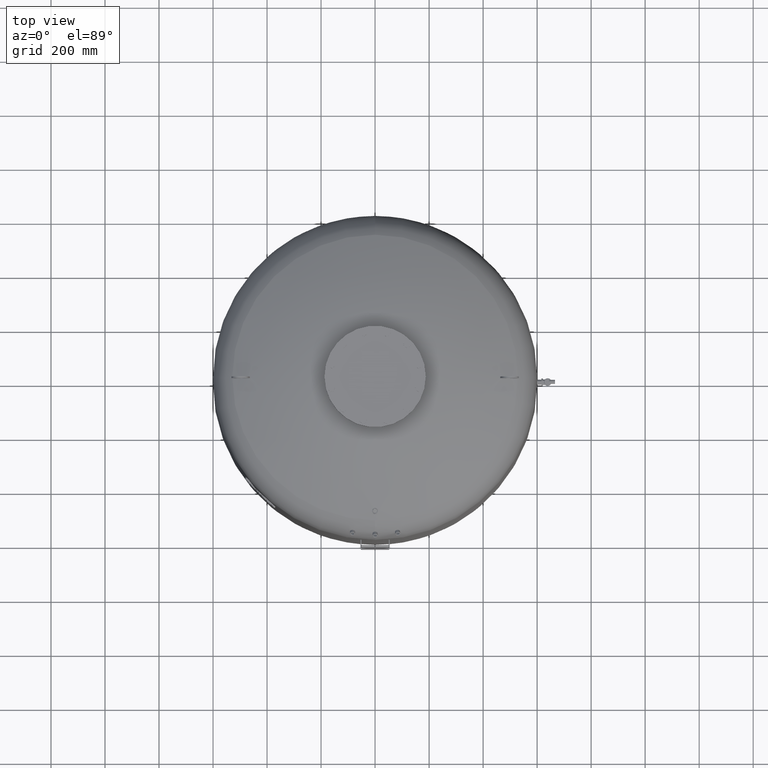
[diagram: clean part render]
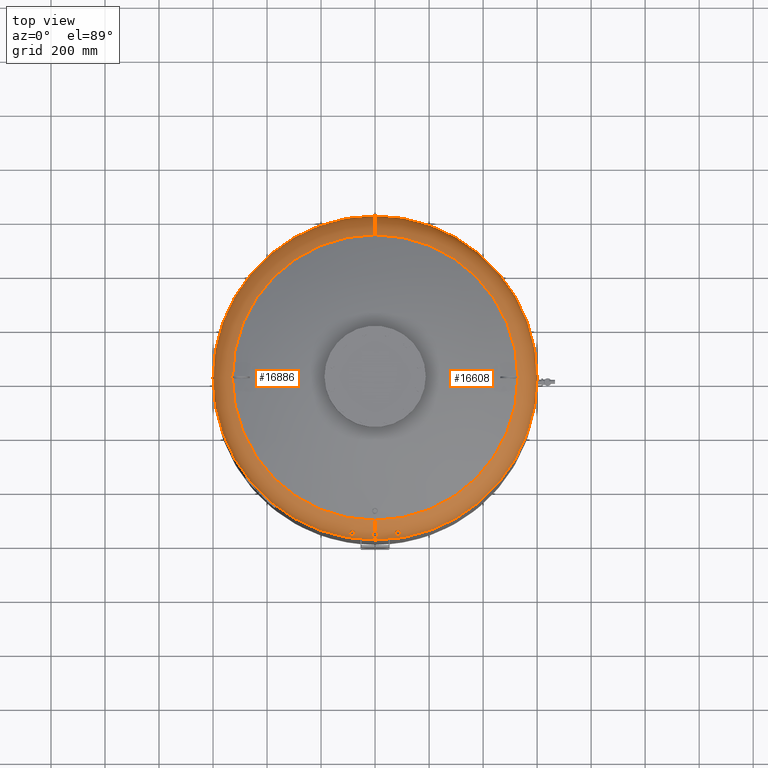
[diagram: same view with one multi-face feature highlighted, each face labeled with its STEP entity id]
A machine part, top view. The highlighted faces form ONE feature: a constant-radius fillet chain: 2 tangent blend faces with common blend radius 127 mm. The faces share edges in the B-rep.
Their STEP definitions:
[1] entity #16608 (Torus):
#15773=CARTESIAN_POINT('',(4.070251E-014,-581.392206755248030,1800.095004337934600));
#15774=VERTEX_POINT('',#15773);
#15790=CARTESIAN_POINT('',(-4.708126E-014,-570.568565249419520,1815.210520603582800));
#15791=VERTEX_POINT('',#15790);
#15970=CARTESIAN_POINT('',(80.223172074027133,-575.056327373477760,1801.335244714457500));
#15971=VERTEX_POINT('',#15970);
#15987=CARTESIAN_POINT('',(85.359990616421896,-564.012452827669340,1815.370250013727900));
#15988=VERTEX_POINT('',#15987);
#15995=CARTESIAN_POINT('',(82.009292261585088,-564.105222987667050,1815.846292839197300));
#15996=VERTEX_POINT('',#15995);
#15997=CARTESIAN_POINT('',(85.359990616421896,-564.012452827669340,1815.370250013727900));
#15998=CARTESIAN_POINT('',(84.920089566502156,-563.970924996638130,1815.498102364585700));
#15999=CARTESIAN_POINT('',(84.471191566060796,-563.951066197114070,1815.600862840021400));
#16000=CARTESIAN_POINT('',(83.351010887361198,-563.956621340505880,1815.790506757055900));
#16001=CARTESIAN_POINT('',(82.677718174702989,-564.007488409072720,1815.846948222621000));
#16002=CARTESIAN_POINT('',(82.009292261585088,-564.105222987667050,1815.846292839197300));
#16003=B_SPLINE_CURVE_WITH_KNOTS('',3,(#15997,#15998,#15999,#16000,#16001,#16002),.UNSPECIFIED.,.F.,.U.,(4,2,4),(55.013308857986530,56.395131241260138,58.421732116709315),.UNSPECIFIED.);
#16004=EDGE_CURVE('',#15988,#15996,#16003,.T.);
#16006=CARTESIAN_POINT('',(82.009292261585088,-564.105222987667050,1815.846292839197300));
#16007=CARTESIAN_POINT('',(80.800452631888035,-564.281974710599910,1815.845107586741100));
#16008=CARTESIAN_POINT('',(79.625994071250048,-564.609594186000210,1815.657432784025800));
#16009=CARTESIAN_POINT('',(77.477529422961481,-565.524878730347500,1814.925709264065700));
#16010=CARTESIAN_POINT('',(76.525491124374739,-566.104031617775150,1814.387647265080200));
#16011=CARTESIAN_POINT('',(75.042807573385517,-567.368487621646300,1813.078931089545400));
#16012=CARTESIAN_POINT('',(74.495726795412509,-568.029763143529640,1812.342697559602100));
#16013=CARTESIAN_POINT('',(73.809943909668490,-569.326554150790800,1810.792068158149300));
#16014=CARTESIAN_POINT('',(73.641392688520995,-569.949374712815940,1810.002794019664000));
#16015=CARTESIAN_POINT('',(73.629503782382855,-571.145857170414840,1808.392477457864500));
#16016=CARTESIAN_POINT('',(73.780074496893548,-571.712588735823370,1807.582600101744700));
#16017=CARTESIAN_POINT('',(74.411536722822660,-572.803614790363100,1805.922748701691500));
#16018=CARTESIAN_POINT('',(74.918740899211585,-573.310251273151270,1805.088922158420700));
#16019=CARTESIAN_POINT('',(76.327223303988831,-574.209067763817530,1803.475378742995000));
#16020=CARTESIAN_POINT('',(77.257742859601734,-574.569650395403870,1802.732026789953800));
#16021=CARTESIAN_POINT('',(78.922658146483087,-574.928449642559830,1801.821181290450600));
#16022=CARTESIAN_POINT('',(79.561261313843886,-575.014473021713570,1801.547400602914400));
#16023=CARTESIAN_POINT('',(80.223172074027133,-575.056327373477760,1801.335244714457500));
#16024=B_SPLINE_CURVE_WITH_KNOTS('',3,(#16006,#16007,#16008,#16009,#16010,#16011,#16012,#16013,#16014,#16015,#16016,#16017,#16018,#16019,#16020,#16021,#16022,#16023),.UNSPECIFIED.,.F.,.U.,(4,2,2,2,2,2,2,2,4),(0.0,3.665081505285111,7.341674748598241,10.706774787927273,13.744795045633090,16.724617199328740,19.996918627979468,23.692625549848572,25.791463465580243),.UNSPECIFIED.);
#16025=EDGE_CURVE('',#15996,#15971,#16024,.T.);
#16347=CARTESIAN_POINT('',(600.0,-4.336858E-014,1733.912457433727700));
#16348=VERTEX_POINT('',#16347);
#16372=CARTESIAN_POINT('',(1.156183E-013,600.0,1733.912457433727700));
#16373=VERTEX_POINT('',#16372);
#16381=CARTESIAN_POINT('',(6.604942E-015,-4.336858E-014,1733.912457433727700));
#16382=DIRECTION('',(0.0,0.0,-1.0));
#16383=DIRECTION('',(1.0,0.0,0.0));
#16384=AXIS2_PLACEMENT_3D('',#16381,#16382,#16383);
#16385=CIRCLE('',#16384,600.0);
#16386=EDGE_CURVE('',#16373,#16348,#16385,.T.);
#16496=CARTESIAN_POINT('',(4.214189E-014,-4.336858E-014,1733.912457433727700));
#16497=DIRECTION('',(2.797667E-017,-1.836970E-016,-1.0));
#16498=DIRECTION('',(0.0,-1.0,0.0));
#16499=AXIS2_PLACEMENT_3D('',#16496,#16497,#16498);
#16500=TOROIDAL_SURFACE('',#16499,472.999999999999890,127.000000000000010);
#16501=CARTESIAN_POINT('',(4.214189E-014,-600.0,1733.912457433727700));
#16502=VERTEX_POINT('',#16501);
#16503=CARTESIAN_POINT('',(4.214189E-014,-472.999999999999940,1733.912457433727700));
#16504=DIRECTION('',(-1.0,0.0,0.0));
#16505=DIRECTION('',(0.0,-1.0,0.0));
#16506=AXIS2_PLACEMENT_3D('',#16503,#16504,#16505);
#16507=CIRCLE('',#16506,127.000000000000010);
#16508=EDGE_CURVE('',#16502,#15774,#16507,.T.);
#16509=ORIENTED_EDGE('',*,*,#16508,.F.);
#16510=CARTESIAN_POINT('',(6.604942E-015,-4.336858E-014,1733.912457433727700));
#16511=DIRECTION('',(0.0,0.0,-1.0));
#16512=DIRECTION('',(1.0,0.0,0.0));
#16513=AXIS2_PLACEMENT_3D('',#16510,#16511,#16512);
#16514=CIRCLE('',#16513,600.0);
#16515=EDGE_CURVE('',#16348,#16502,#16514,.T.);
#16516=ORIENTED_EDGE('',*,*,#16515,.F.);
#16517=ORIENTED_EDGE('',*,*,#16386,.F.);
#16518=CARTESIAN_POINT('',(1.036830E-013,528.621296296296240,1848.084570483805000));
#16519=VERTEX_POINT('',#16518);
#16520=CARTESIAN_POINT('',(1.000658E-013,472.999999999999830,1733.912457433727700));
#16521=DIRECTION('',(1.0,0.0,0.0));
#16522=DIRECTION('',(0.0,1.0,0.0));
#16523=AXIS2_PLACEMENT_3D('',#16520,#16521,#16522);
#16524=CIRCLE('',#16523,127.000000000000010);
#16525=EDGE_CURVE('',#16373,#16519,#16524,.T.);
#16526=ORIENTED_EDGE('',*,*,#16525,.T.);
#16527=CARTESIAN_POINT('',(528.621296296296240,-2.239550E-014,1848.084570483805000));
#16528=VERTEX_POINT('',#16527);
#16529=CARTESIAN_POINT('',(3.410787E-015,-2.239550E-014,1848.084570483805000));
#16530=DIRECTION('',(0.0,0.0,-1.0));
#16531=DIRECTION('',(1.0,0.0,0.0));
#16532=AXIS2_PLACEMENT_3D('',#16529,#16530,#16531);
#16533=CIRCLE('',#16532,528.621296296296240);
#16534=EDGE_CURVE('',#16519,#16528,#16533,.T.);
#16535=ORIENTED_EDGE('',*,*,#16534,.T.);
#16536=CARTESIAN_POINT('',(3.894773E-014,-528.621296296296240,1848.084570483805000));
#16537=VERTEX_POINT('',#16536);
#16538=CARTESIAN_POINT('',(3.410787E-015,-2.239550E-014,1848.084570483805000));
#16539=DIRECTION('',(0.0,0.0,-1.0));
#16540=DIRECTION('',(1.0,0.0,0.0));
#16541=AXIS2_PLACEMENT_3D('',#16538,#16539,#16540);
#16542=CIRCLE('',#16541,528.621296296296240);
#16543=EDGE_CURVE('',#16528,#16537,#16542,.T.);
#16544=ORIENTED_EDGE('',*,*,#16543,.T.);
#16545=CARTESIAN_POINT('',(4.214189E-014,-472.999999999999940,1733.912457433727700));
#16546=DIRECTION('',(-1.0,0.0,0.0));
#16547=DIRECTION('',(0.0,-1.0,0.0));
#16548=AXIS2_PLACEMENT_3D('',#16545,#16546,#16547);
#16549=CIRCLE('',#16548,127.000000000000010);
#16550=EDGE_CURVE('',#15791,#16537,#16549,.T.);
#16551=ORIENTED_EDGE('',*,*,#16550,.F.);
#16552=CARTESIAN_POINT('',(4.070251E-014,-581.392206755248030,1800.095004337934600));
#16553=CARTESIAN_POINT('',(1.049135398505305,-581.392206755248030,1800.095004337934600));
#16554=CARTESIAN_POINT('',(2.091050416020754,-581.296187055613470,1800.248177235453100));
#16555=CARTESIAN_POINT('',(4.232533130706272,-580.886185335293480,1800.894971371483700));
#16556=CARTESIAN_POINT('',(5.289902262042863,-580.543808635783420,1801.432583409372200));
#16557=CARTESIAN_POINT('',(7.073608419265530,-579.657581890789170,1802.794458782106600));
#16558=CARTESIAN_POINT('',(7.792129244131064,-579.127020352400560,1803.598293673625000));
#16559=CARTESIAN_POINT('',(8.712105821969882,-578.063087887566330,1805.170144327081100));
#16560=CARTESIAN_POINT('',(8.989384521153607,-577.563250034520480,1805.896612659168100));
#16561=CARTESIAN_POINT('',(9.260253181349741,-576.585246075215200,1807.290382674015700));
#16562=CARTESIAN_POINT('',(9.283714127357488,-576.116040854578390,1807.948224925462900));
#16563=CARTESIAN_POINT('',(9.117885482811207,-575.148466541514950,1809.282487674240000));
#16564=CARTESIAN_POINT('',(8.916993759582104,-574.654575326084000,1809.951438670523700));
#16565=CARTESIAN_POINT('',(8.209598462911924,-573.574637971331300,1811.391290147214000));
#16566=CARTESIAN_POINT('',(7.640617860804367,-573.008497149964910,1812.129229930127200));
#16567=CARTESIAN_POINT('',(6.179498730488137,-571.993547010660340,1813.432765538049400));
#16568=CARTESIAN_POINT('',(5.288437349604227,-571.558862602890710,1813.979768990156600));
#16569=CARTESIAN_POINT('',(3.623883006108815,-571.013026207121470,1814.661419317152200));
#16570=CARTESIAN_POINT('',(2.913316885185672,-570.844679406621030,1814.869784878464500));
#16571=CARTESIAN_POINT('',(1.464963205591322,-570.623717045028120,1815.142747980694800));
#16572=CARTESIAN_POINT('',(0.733781008385985,-570.568565249419630,1815.210520603582800));
#16573=CARTESIAN_POINT('',(-4.708126E-014,-570.568565249419630,1815.210520603582800));
#16574=B_SPLINE_CURVE_WITH_KNOTS('',3,(#16552,#16553,#16554,#16555,#16556,#16557,#16558,#16559,#16560,#16561,#16562,#16563,#16564,#16565,#16566,#16567,#16568,#16569,#16570,#16571,#16572,#16573),.UNSPECIFIED.,.F.,.U.,(4,2,2,2,2,2,2,2,2,2,4),(29.212938941391993,32.368003526444987,36.036255918751920,39.606385656065207,42.363382763940862,44.777948976665328,47.332232548795965,50.579004257411995,53.948528424196276,56.218159804628229,58.419502829786325),.UNSPECIFIED.);
#16575=EDGE_CURVE('',#15774,#15791,#16574,.T.);
#16576=ORIENTED_EDGE('',*,*,#16575,.F.);
#16577=EDGE_LOOP('',(#16509,#16516,#16517,#16526,#16535,#16544,#16551,#16576));
#16578=FACE_OUTER_BOUND('',#16577,.T.);
#16579=ORIENTED_EDGE('',*,*,#16025,.F.);
#16580=ORIENTED_EDGE('',*,*,#16004,.F.);
#16581=CARTESIAN_POINT('',(80.223172074027133,-575.056327373477760,1801.335244714457500));
#16582=CARTESIAN_POINT('',(80.670667529582104,-575.084623683700100,1801.191813300942800));
#16583=CARTESIAN_POINT('',(81.128814409506802,-575.092726986161550,1801.076542278544600));
#16584=CARTESIAN_POINT('',(82.762925442859853,-575.049621094768330,1800.776111009491400));
#16585=CARTESIAN_POINT('',(83.951516570830606,-574.891008521235110,1800.754061806116600));
#16586=CARTESIAN_POINT('',(86.272223623677235,-574.328608371798960,1801.102374465498100));
#16587=CARTESIAN_POINT('',(87.376873992159858,-573.923697629215330,1801.480458018888200));
#16588=CARTESIAN_POINT('',(89.325190903422765,-572.909622512233230,1802.590659866585800));
#16589=CARTESIAN_POINT('',(90.146898486115660,-572.307998489119880,1803.315388591747500));
#16590=CARTESIAN_POINT('',(91.314742399069644,-571.049029732620280,1804.912369163938800));
#16591=CARTESIAN_POINT('',(91.693005130487165,-570.413093711422790,1805.749518161642800));
#16592=CARTESIAN_POINT('',(92.045862424127549,-569.177861980137440,1807.415302487939900));
#16593=CARTESIAN_POINT('',(92.055346935752681,-568.588941150452110,1808.225954424258600));
#16594=CARTESIAN_POINT('',(91.755266691593050,-567.442596697226350,1809.834052941505400));
#16595=CARTESIAN_POINT('',(91.445670827753631,-566.893077593207180,1810.620626921028400));
#16596=CARTESIAN_POINT('',(90.471396597983059,-565.825893176520140,1812.190903425972200));
#16597=CARTESIAN_POINT('',(89.774422245962597,-565.331182748662170,1812.947085163533500));
#16598=CARTESIAN_POINT('',(88.071046961439592,-564.534624901676580,1814.252454485898400));
#16599=CARTESIAN_POINT('',(87.073688823663971,-564.244796623043160,1814.784937215187300));
#16600=CARTESIAN_POINT('',(85.784222810709636,-564.057788086257460,1815.240444180635000));
#16601=CARTESIAN_POINT('',(85.573163175583161,-564.032576885156690,1815.308293778724200));
#16602=CARTESIAN_POINT('',(85.359990616421896,-564.012452827669340,1815.370250013727900));
#16603=B_SPLINE_CURVE_WITH_KNOTS('',3,(#16581,#16582,#16583,#16584,#16585,#16586,#16587,#16588,#16589,#16590,#16591,#16592,#16593,#16594,#16595,#16596,#16597,#16598,#16599,#16600,#16601,#16602),.UNSPECIFIED.,.F.,.U.,(4,2,2,2,2,2,2,2,2,2,4),(25.791463465580243,27.210416722929281,30.778013921886611,34.450160569566002,38.160992128060776,41.484474612597552,44.470885931146896,47.476342496791254,50.872408537250827,54.343688692718473,55.013308857986530),.UNSPECIFIED.);
#16604=EDGE_CURVE('',#15971,#15988,#16603,.T.);
#16605=ORIENTED_EDGE('',*,*,#16604,.F.);
#16606=EDGE_LOOP('',(#16579,#16580,#16605));
#16607=FACE_BOUND('',#16606,.T.);
#16608=ADVANCED_FACE('',(#16578,#16607),#16500,.T.);
[2] entity #16886 (Torus):
#15773=CARTESIAN_POINT('',(4.070251E-014,-581.392206755248030,1800.095004337934600));
#15774=VERTEX_POINT('',#15773);
#15790=CARTESIAN_POINT('',(-4.708126E-014,-570.568565249419520,1815.210520603582800));
#15791=VERTEX_POINT('',#15790);
#15798=CARTESIAN_POINT('',(-4.708126E-014,-570.568565249419520,1815.210520603582800));
#15799=CARTESIAN_POINT('',(-1.226193800664040,-570.568565249419630,1815.210520603582800));
#15800=CARTESIAN_POINT('',(-2.440224030761931,-570.722838559517300,1815.021484041693600));
#15801=CARTESIAN_POINT('',(-4.696456483105028,-571.315280350829650,1814.285048031583300));
#15802=CARTESIAN_POINT('',(-5.717181468956783,-571.745930145486910,1813.746562818159000));
#15803=CARTESIAN_POINT('',(-7.348889016405016,-572.763682954573820,1812.446045641367200));
#15804=CARTESIAN_POINT('',(-7.976675843730992,-573.322944622357000,1811.721335507953000));
#15805=CARTESIAN_POINT('',(-8.788540489889847,-574.407826373429540,1810.283103634066300));
#15806=CARTESIAN_POINT('',(-9.033208350713638,-574.910944905941960,1809.605550719006500));
#15807=CARTESIAN_POINT('',(-9.269818253449543,-575.888514548996680,1808.264529096906200));
#15808=CARTESIAN_POINT('',(-9.280056342089647,-576.357732046934190,1807.610257329848300));
#15809=CARTESIAN_POINT('',(-9.085015355485178,-577.325963303350250,1806.237796083592200));
#15810=CARTESIAN_POINT('',(-8.857138817766971,-577.817865573910240,1805.527183592973900));
#15811=CARTESIAN_POINT('',(-8.057446139469484,-578.883475300601960,1803.962418464691200));
#15812=CARTESIAN_POINT('',(-7.407129945179072,-579.426203893210870,1803.145369939497000));
#15813=CARTESIAN_POINT('',(-5.796804700803868,-580.331244134660890,1801.762058210871600));
#15814=CARTESIAN_POINT('',(-4.856513747498868,-580.689946795549870,1801.202311935192900));
#15815=CARTESIAN_POINT('',(-2.759733933541183,-581.206397681135970,1800.391020618060100));
#15816=CARTESIAN_POINT('',(-1.618787187096637,-581.355242397138110,1800.153749112597300));
#15817=CARTESIAN_POINT('',(-0.303381406680882,-581.390196523329790,1800.098199779960900));
#15818=CARTESIAN_POINT('',(-0.151615306289402,-581.392206755248030,1800.095004337934600));
#15819=CARTESIAN_POINT('',(4.070251E-014,-581.392206755248030,1800.095004337934600));
#15820=B_SPLINE_CURVE_WITH_KNOTS('',3,(#15798,#15799,#15800,#15801,#15802,#15803,#15804,#15805,#15806,#15807,#15808,#15809,#15810,#15811,#15812,#15813,#15814,#15815,#15816,#15817,#15818,#15819),.UNSPECIFIED.,.F.,.U.,(4,2,2,2,2,2,2,2,2,2,4),(0.0,3.678581401991979,7.338673258340574,10.643148583621077,13.266211746194269,15.671456589480382,18.338297693247561,21.836157815532140,25.261480459045892,28.756986273979081,29.212938941391993),.UNSPECIFIED.);
#15821=EDGE_CURVE('',#15791,#15774,#15820,.T.);
#16230=CARTESIAN_POINT('',(-80.223172074027190,-575.056327373477760,1801.335244714457500));
#16231=VERTEX_POINT('',#16230);
#16247=CARTESIAN_POINT('',(-85.359990616421925,-564.012452827669340,1815.370250013728100));
#16248=VERTEX_POINT('',#16247);
#16255=CARTESIAN_POINT('',(-85.359990616421925,-564.012452827669340,1815.370250013728100));
#16256=CARTESIAN_POINT('',(-86.467509442209220,-564.117005555310020,1815.048361976583900));
#16257=CARTESIAN_POINT('',(-87.506731109483638,-564.357977141732360,1814.570802959271800));
#16258=CARTESIAN_POINT('',(-89.321282473322213,-565.072107131402390,1813.355975914284000));
#16259=CARTESIAN_POINT('',(-90.084646742936002,-565.534327599336850,1812.634336465598600));
#16260=CARTESIAN_POINT('',(-91.200526578083142,-566.561702591018840,1811.101312814509100));
#16261=CARTESIAN_POINT('',(-91.579901472151420,-567.103389210165460,1810.318371654078400));
#16262=CARTESIAN_POINT('',(-92.007826861911610,-568.234502793233450,1808.718721418350900));
#16263=CARTESIAN_POINT('',(-92.063359853368326,-568.814509609373890,1807.914286381372200));
#16264=CARTESIAN_POINT('',(-91.853228820338089,-570.030116556414550,1806.260720671591300));
#16265=CARTESIAN_POINT('',(-91.559726571309284,-570.657193924743980,1805.426130768650600));
#16266=CARTESIAN_POINT('',(-90.562232671186450,-571.938785422058570,1803.773527893878500));
#16267=CARTESIAN_POINT('',(-89.811329165915708,-572.571132717907860,1802.993031575019800));
#16268=CARTESIAN_POINT('',(-88.009323551087164,-573.638953406377250,1801.775738010628400));
#16269=CARTESIAN_POINT('',(-86.990036695509687,-574.073311186282130,1801.335117188556800));
#16270=CARTESIAN_POINT('',(-84.769352732134863,-574.732336924966940,1800.816129242120700));
#16271=CARTESIAN_POINT('',(-83.588482818424865,-574.948673334115480,1800.746335015583100));
#16272=CARTESIAN_POINT('',(-81.664213969860583,-575.095230495298320,1800.952450911259800));
#16273=CARTESIAN_POINT('',(-80.931282189265417,-575.101103031517820,1801.108280991157200));
#16274=CARTESIAN_POINT('',(-80.223172074027190,-575.056327373477760,1801.335244714457500));
#16275=B_SPLINE_CURVE_WITH_KNOTS('',3,(#16255,#16256,#16257,#16258,#16259,#16260,#16261,#16262,#16263,#16264,#16265,#16266,#16267,#16268,#16269,#16270,#16271,#16272,#16273,#16274),.UNSPECIFIED.,.F.,.U.,(4,2,2,2,2,2,2,2,2,4),(14.306393672591822,17.784414114708078,21.199735200009155,24.254622371122004,27.215820076021632,30.443584904928937,34.166803889951005,37.712082076822533,41.289297907321746,43.535585439877110),.UNSPECIFIED.);
#16276=EDGE_CURVE('',#16248,#16231,#16275,.T.);
#16364=CARTESIAN_POINT('',(-599.999999999999890,3.010780E-014,1733.912457433727700));
#16365=VERTEX_POINT('',#16364);
#16372=CARTESIAN_POINT('',(1.156183E-013,600.0,1733.912457433727700));
#16373=VERTEX_POINT('',#16372);
#16374=CARTESIAN_POINT('',(6.604942E-015,-4.336858E-014,1733.912457433727700));
#16375=DIRECTION('',(0.0,0.0,-1.0));
#16376=DIRECTION('',(1.0,0.0,0.0));
#16377=AXIS2_PLACEMENT_3D('',#16374,#16375,#16376);
#16378=CIRCLE('',#16377,600.0);
#16379=EDGE_CURVE('',#16365,#16373,#16378,.T.);
#16501=CARTESIAN_POINT('',(4.214189E-014,-600.0,1733.912457433727700));
#16502=VERTEX_POINT('',#16501);
#16503=CARTESIAN_POINT('',(4.214189E-014,-472.999999999999940,1733.912457433727700));
#16504=DIRECTION('',(-1.0,0.0,0.0));
#16505=DIRECTION('',(0.0,-1.0,0.0));
#16506=AXIS2_PLACEMENT_3D('',#16503,#16504,#16505);
#16507=CIRCLE('',#16506,127.000000000000010);
#16508=EDGE_CURVE('',#16502,#15774,#16507,.T.);
#16518=CARTESIAN_POINT('',(1.036830E-013,528.621296296296240,1848.084570483805000));
#16519=VERTEX_POINT('',#16518);
#16520=CARTESIAN_POINT('',(1.000658E-013,472.999999999999830,1733.912457433727700));
#16521=DIRECTION('',(1.0,0.0,0.0));
#16522=DIRECTION('',(0.0,1.0,0.0));
#16523=AXIS2_PLACEMENT_3D('',#16520,#16521,#16522);
#16524=CIRCLE('',#16523,127.000000000000010);
#16525=EDGE_CURVE('',#16373,#16519,#16524,.T.);
#16536=CARTESIAN_POINT('',(3.894773E-014,-528.621296296296240,1848.084570483805000));
#16537=VERTEX_POINT('',#16536);
#16545=CARTESIAN_POINT('',(4.214189E-014,-472.999999999999940,1733.912457433727700));
#16546=DIRECTION('',(-1.0,0.0,0.0));
#16547=DIRECTION('',(0.0,-1.0,0.0));
#16548=AXIS2_PLACEMENT_3D('',#16545,#16546,#16547);
#16549=CIRCLE('',#16548,127.000000000000010);
#16550=EDGE_CURVE('',#15791,#16537,#16549,.T.);
#16662=CARTESIAN_POINT('',(3.410787E-015,-2.239550E-014,1848.084570483805000));
#16663=DIRECTION('',(0.0,0.0,-1.0));
#16664=DIRECTION('',(1.0,0.0,0.0));
#16665=AXIS2_PLACEMENT_3D('',#16662,#16663,#16664);
#16666=CIRCLE('',#16665,528.621296296296240);
#16667=EDGE_CURVE('',#16537,#16519,#16666,.T.);
#16829=CARTESIAN_POINT('',(4.214189E-014,-4.336858E-014,1733.912457433727700));
#16830=DIRECTION('',(2.797667E-017,-1.836970E-016,-1.0));
#16831=DIRECTION('',(0.0,-1.0,0.0));
#16832=AXIS2_PLACEMENT_3D('',#16829,#16830,#16831);
#16833=TOROIDAL_SURFACE('',#16832,472.999999999999890,127.000000000000010);
#16834=ORIENTED_EDGE('',*,*,#16508,.T.);
#16835=ORIENTED_EDGE('',*,*,#15821,.F.);
#16836=ORIENTED_EDGE('',*,*,#16550,.T.);
#16837=ORIENTED_EDGE('',*,*,#16667,.T.);
#16838=ORIENTED_EDGE('',*,*,#16525,.F.);
#16839=ORIENTED_EDGE('',*,*,#16379,.F.);
#16840=CARTESIAN_POINT('',(6.604942E-015,-4.336858E-014,1733.912457433727700));
#16841=DIRECTION('',(0.0,0.0,-1.0));
#16842=DIRECTION('',(1.0,0.0,0.0));
#16843=AXIS2_PLACEMENT_3D('',#16840,#16841,#16842);
#16844=CIRCLE('',#16843,600.0);
#16845=EDGE_CURVE('',#16502,#16365,#16844,.T.);
#16846=ORIENTED_EDGE('',*,*,#16845,.F.);
#16847=EDGE_LOOP('',(#16834,#16835,#16836,#16837,#16838,#16839,#16846));
#16848=FACE_OUTER_BOUND('',#16847,.T.);
#16849=CARTESIAN_POINT('',(-74.077941184851781,-568.823124759316670,1811.393553714796300));
#16850=VERTEX_POINT('',#16849);
#16851=CARTESIAN_POINT('',(-74.077941184851809,-568.823124759316560,1811.393553714796300));
#16852=CARTESIAN_POINT('',(-74.423789584662515,-568.127599264810780,1812.231279925901200));
#16853=CARTESIAN_POINT('',(-74.964589351680473,-567.450412137805530,1812.990091772995100));
#16854=CARTESIAN_POINT('',(-76.397104336475024,-566.199597477264210,1814.292439758179600));
#16855=CARTESIAN_POINT('',(-77.281948480097995,-565.639566593161700,1814.820314023565100));
#16856=CARTESIAN_POINT('',(-79.303957384115961,-564.722301177522010,1815.578036046428200));
#16857=CARTESIAN_POINT('',(-80.426661689560561,-564.377625035222080,1815.795460934847100));
#16858=CARTESIAN_POINT('',(-82.789445701042268,-563.961607426362550,1815.882573360154100));
#16859=CARTESIAN_POINT('',(-84.008925354268499,-563.902430947393210,1815.741376588627600));
#16860=CARTESIAN_POINT('',(-85.239805030005186,-564.001525667967260,1815.404665196019300));
#16861=CARTESIAN_POINT('',(-85.299998054115250,-564.006789369964390,1815.387686185172200));
#16862=CARTESIAN_POINT('',(-85.359990616421925,-564.012452827669340,1815.370250013728100));
#16863=B_SPLINE_CURVE_WITH_KNOTS('',3,(#16851,#16852,#16853,#16854,#16855,#16856,#16857,#16858,#16859,#16860,#16861,#16862),.UNSPECIFIED.,.F.,.U.,(4,2,2,2,2,4),(0.0,3.427297522156869,6.915215145807981,10.466077362229157,14.117994745892375,14.306393672591822),.UNSPECIFIED.);
#16864=EDGE_CURVE('',#16850,#16248,#16863,.T.);
#16865=ORIENTED_EDGE('',*,*,#16864,.F.);
#16866=CARTESIAN_POINT('',(-80.223172074027190,-575.056327373477760,1801.335244714457500));
#16867=CARTESIAN_POINT('',(-79.780929008165060,-575.028363185618450,1801.476992630031400));
#16868=CARTESIAN_POINT('',(-79.348365074454591,-574.980630391679370,1801.646475624076200));
#16869=CARTESIAN_POINT('',(-77.830427390954213,-574.735749024199780,1802.355843742363500));
#16870=CARTESIAN_POINT('',(-76.846518123332842,-574.425501590783480,1803.040166982119000));
#16871=CARTESIAN_POINT('',(-75.286275178769316,-573.600537745929960,1804.590361640322000));
#16872=CARTESIAN_POINT('',(-74.695028381325713,-573.111479336445880,1805.423774403595200));
#16873=CARTESIAN_POINT('',(-73.920848122269433,-572.044318383565720,1807.092775988573100));
#16874=CARTESIAN_POINT('',(-73.705937820722582,-571.487848694694210,1807.908274905182000));
#16875=CARTESIAN_POINT('',(-73.594221894892797,-570.312878245318980,1809.526622459512100));
#16876=CARTESIAN_POINT('',(-73.696767828620466,-569.702175679769770,1810.319160780906300));
#16877=CARTESIAN_POINT('',(-73.992340576230774,-569.002052728992680,1811.177110493272000));
#16878=CARTESIAN_POINT('',(-74.033503119506378,-568.912492839062570,1811.285914263143200));
#16879=CARTESIAN_POINT('',(-74.077941184851809,-568.823124759316670,1811.393553714796300));
#16880=B_SPLINE_CURVE_WITH_KNOTS('',3,(#16866,#16867,#16868,#16869,#16870,#16871,#16872,#16873,#16874,#16875,#16876,#16877,#16878,#16879),.UNSPECIFIED.,.F.,.U.,(4,2,2,2,2,2,4),(43.535585439877110,44.938481774539703,48.616409687105005,51.986260428521710,54.997178532547181,57.995193450677441,58.435566953435341),.UNSPECIFIED.);
#16881=EDGE_CURVE('',#16231,#16850,#16880,.T.);
#16882=ORIENTED_EDGE('',*,*,#16881,.F.);
#16883=ORIENTED_EDGE('',*,*,#16276,.F.);
#16884=EDGE_LOOP('',(#16865,#16882,#16883));
#16885=FACE_BOUND('',#16884,.T.);
#16886=ADVANCED_FACE('',(#16848,#16885),#16833,.T.);